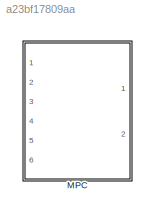
MODEL slx_a23bf17809aa
KIND library
CONFIG AbsTol = auto
CONFIG EnableMultiTasking = off
CONFIG FixedStep = auto
CONFIG MaxStep = auto
CONFIG MinStep = auto
CONFIG RelTol = 1e-3
CONFIG SampleTimeConstraint = Unconstrained
CONFIG Solver = VariableStepAuto
CONFIG SolverName = VariableStepAuto
CONFIG StartTime = 0.0
CONFIG StopTime = 10.0
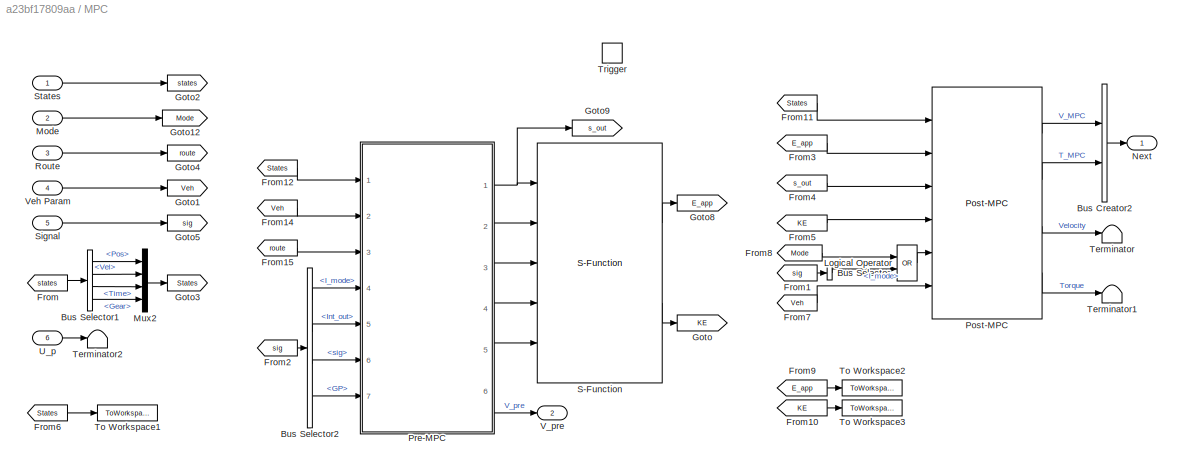
BLOCK [SubSystem] MPC
  Ports = [6, 2, 0, 1]
  RequestExecContextInheritance = off
  TreatAsAtomicUnit = on
BLOCK [BusCreator] MPC/Bus Creator2
  DisplayOption = bar
  InheritFromInputs = on
  Inputs = 2
  Ports = [2, 1]
BLOCK [BusSelector] MPC/Bus Selector
  OutputAsBus = off
  OutputSignals = Signal.I_mode
  Ports = [1, 1]
BLOCK [BusSelector] MPC/Bus Selector1
  OutputAsBus = off
  OutputSignals = Pos,Vel,Time,Gear
  Ports = [1, 4]
BLOCK [BusSelector] MPC/Bus Selector2
  OutputAsBus = off
  OutputSignals = Signal.I_mode,Signal.Int_out,Signal.sig,GP
  Ports = [1, 4]
BLOCK [From] MPC/From
  GotoTag = states
BLOCK [From] MPC/From1
  GotoTag = sig
BLOCK [From] MPC/From10
  GotoTag = KE
BLOCK [From] MPC/From11
  GotoTag = States
BLOCK [From] MPC/From12
  GotoTag = States
BLOCK [From] MPC/From14
  GotoTag = Veh
BLOCK [From] MPC/From15
  GotoTag = route
BLOCK [From] MPC/From2
  GotoTag = sig
BLOCK [From] MPC/From3
  GotoTag = E_app
BLOCK [From] MPC/From4
  GotoTag = s_out
BLOCK [From] MPC/From5
  GotoTag = KE
BLOCK [From] MPC/From6
  GotoTag = States
BLOCK [From] MPC/From7
  GotoTag = Veh
BLOCK [From] MPC/From8
  GotoTag = Mode
BLOCK [From] MPC/From9
  GotoTag = E_app
BLOCK [Goto] MPC/Goto
  GotoTag = KE
BLOCK [Goto] MPC/Goto1
  GotoTag = Veh
BLOCK [Goto] MPC/Goto12
  GotoTag = Mode
BLOCK [Goto] MPC/Goto2
  GotoTag = states
BLOCK [Goto] MPC/Goto3
  GotoTag = States
BLOCK [Goto] MPC/Goto4
  GotoTag = route
BLOCK [Goto] MPC/Goto5
  GotoTag = sig
BLOCK [Goto] MPC/Goto8
  GotoTag = E_app
BLOCK [Goto] MPC/Goto9
  GotoTag = s_out
BLOCK [Logic] MPC/Logical Operator
  AllPortsSameDT = off
  Operator = OR
  OutDataTypeStr = boolean
  Ports = [2, 1]
BLOCK [Inport] MPC/Mode
  IconDisplay = Port number
  Port = 2
BLOCK [Mux] MPC/Mux2
  DisplayOption = bar
  Ports = [4, 1]
BLOCK [Outport] MPC/Next
  IconDisplay = Port number
BLOCK [Reference] MPC/Post-MPC  REF=Post_MPC_UL/Post-MPC
  Ports = [6, 4]
  SourceBlock = Post_MPC_UL/Post-MPC
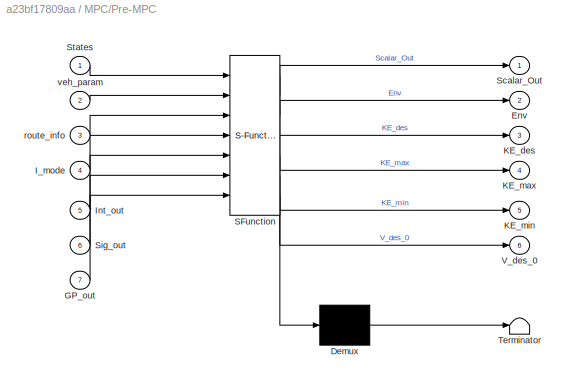
BLOCK [SubSystem] MPC/Pre-MPC
  ErrorFcn = Stateflow.Translate.translate
  PermitHierarchicalResolution = ExplicitOnly
  Ports = [7, 6]
  RequestExecContextInheritance = off
  SFBlockType = MATLAB Function
  TreatAsAtomicUnit = on
BLOCK [Demux] MPC/Pre-MPC/ Demux 
  Outputs = 1
  Ports = [1, 1]
BLOCK [S-Function] MPC/Pre-MPC/ SFunction 
  EnableBusSupport = on
  FunctionName = sf_sfun
  PortCounts = [7 7]
  Ports = [7, 7]
  SFcnIsStateOwnerBlock = off
  SFunctionDeploymentMode = off
  Tag = Stateflow S-Function MPC_51_v1_GP_CL 2
BLOCK [Terminator] MPC/Pre-MPC/ Terminator 
BLOCK [Outport] MPC/Pre-MPC/Env
  IconDisplay = Port number
  Port = 2
BLOCK [Inport] MPC/Pre-MPC/GP_out
  IconDisplay = Port number
  Port = 7
BLOCK [Inport] MPC/Pre-MPC/I_mode
  IconDisplay = Port number
  Port = 4
BLOCK [Inport] MPC/Pre-MPC/Int_out
  IconDisplay = Port number
  Port = 5
BLOCK [Outport] MPC/Pre-MPC/KE_des
  IconDisplay = Port number
  Port = 3
BLOCK [Outport] MPC/Pre-MPC/KE_max
  IconDisplay = Port number
  Port = 4
BLOCK [Outport] MPC/Pre-MPC/KE_min
  IconDisplay = Port number
  Port = 5
BLOCK [Outport] MPC/Pre-MPC/Scalar_Out
  IconDisplay = Port number
BLOCK [Inport] MPC/Pre-MPC/Sig_out
  IconDisplay = Port number
  Port = 6
BLOCK [Inport] MPC/Pre-MPC/States
  IconDisplay = Port number
BLOCK [Outport] MPC/Pre-MPC/V_des_0
  IconDisplay = Port number
  Port = 6
BLOCK [Inport] MPC/Pre-MPC/route_info
  IconDisplay = Port number
  Port = 3
BLOCK [Inport] MPC/Pre-MPC/veh_param
  IconDisplay = Port number
  Port = 2
BLOCK [Inport] MPC/Route
  IconDisplay = Port number
  Port = 3
BLOCK [Reference] MPC/S-Function  REF=solver_51_v1_UL/S-Function
  Ports = [5, 2]
  SourceBlock = solver_51_v1_UL/S-Function
BLOCK [Inport] MPC/Signal
  IconDisplay = Port number
  Port = 5
BLOCK [Inport] MPC/States
  IconDisplay = Port number
BLOCK [Terminator] MPC/Terminator
BLOCK [Terminator] MPC/Terminator1
BLOCK [Terminator] MPC/Terminator2
BLOCK [ToWorkspace] MPC/To Workspace1
  FixptAsFi = on
  MaxDataPoints = inf
  Ports = [1]
  SampleTime = -1
  Save2DSignal = 3-D array (concatenate along third dimension)
  VariableName = States
BLOCK [ToWorkspace] MPC/To Workspace2
  FixptAsFi = on
  MaxDataPoints = inf
  Ports = [1]
  SampleTime = -1
  Save2DSignal = 3-D array (concatenate along third dimension)
  VariableName = E_app
BLOCK [ToWorkspace] MPC/To Workspace3
  FixptAsFi = on
  MaxDataPoints = inf
  Ports = [1]
  SampleTime = -1
  Save2DSignal = 3-D array (concatenate along third dimension)
  VariableName = KE
BLOCK [TriggerPort] MPC/Trigger
  Ports = []
  StatesWhenEnabling = held
  TriggerType = falling
  VariantControl = Variant
BLOCK [Inport] MPC/U_p
  IconDisplay = Port number
  Port = 6
BLOCK [Outport] MPC/V_pre
  IconDisplay = Port number
  Port = 2
BLOCK [Inport] MPC/Veh Param
  IconDisplay = Port number
  Port = 4
LINE MPC/Bus Creator2:1 -> MPC/Next:1
LINE MPC/Bus Selector1:1 -> MPC/Mux2:1
LINE MPC/Bus Selector1:2 -> MPC/Mux2:2
LINE MPC/Bus Selector1:3 -> MPC/Mux2:3
LINE MPC/Bus Selector1:4 -> MPC/Mux2:4
LINE MPC/Bus Selector2:1 -> MPC/Pre-MPC:4
LINE MPC/Bus Selector2:2 -> MPC/Pre-MPC:5
LINE MPC/Bus Selector2:3 -> MPC/Pre-MPC:6
LINE MPC/Bus Selector2:4 -> MPC/Pre-MPC:7
LINE MPC/Bus Selector:1 -> MPC/Logical Operator:2
LINE MPC/From10:1 -> MPC/To Workspace3:1
LINE MPC/From11:1 -> MPC/Post-MPC:1
LINE MPC/From12:1 -> MPC/Pre-MPC:1
LINE MPC/From14:1 -> MPC/Pre-MPC:2
LINE MPC/From15:1 -> MPC/Pre-MPC:3
LINE MPC/From1:1 -> MPC/Bus Selector:1
LINE MPC/From2:1 -> MPC/Bus Selector2:1
LINE MPC/From3:1 -> MPC/Post-MPC:2
LINE MPC/From4:1 -> MPC/Post-MPC:3
LINE MPC/From5:1 -> MPC/Post-MPC:4
LINE MPC/From6:1 -> MPC/To Workspace1:1
LINE MPC/From7:1 -> MPC/Post-MPC:6
LINE MPC/From8:1 -> MPC/Logical Operator:1
LINE MPC/From9:1 -> MPC/To Workspace2:1
LINE MPC/From:1 -> MPC/Bus Selector1:1
LINE MPC/Logical Operator:1 -> MPC/Post-MPC:5
LINE MPC/Mode:1 -> MPC/Goto12:1
LINE MPC/Mux2:1 -> MPC/Goto3:1
LINE MPC/Post-MPC:1 -> MPC/Bus Creator2:1
LINE MPC/Post-MPC:2 -> MPC/Bus Creator2:2
LINE MPC/Post-MPC:3 -> MPC/Terminator:1
LINE MPC/Post-MPC:4 -> MPC/Terminator1:1
NET MPC/Pre-MPC:1 -> MPC/Goto9:1, MPC/S-Function:1
LINE MPC/Pre-MPC:2 -> MPC/S-Function:2
LINE MPC/Pre-MPC:3 -> MPC/S-Function:3
LINE MPC/Pre-MPC:4 -> MPC/S-Function:4
LINE MPC/Pre-MPC:5 -> MPC/S-Function:5
LINE MPC/Pre-MPC:6 -> MPC/V_pre:1
LINE MPC/Route:1 -> MPC/Goto4:1
LINE MPC/S-Function:1 -> MPC/Goto8:1
LINE MPC/S-Function:2 -> MPC/Goto:1
LINE MPC/Signal:1 -> MPC/Goto5:1
LINE MPC/States:1 -> MPC/Goto2:1
LINE MPC/U_p:1 -> MPC/Terminator2:1
LINE MPC/Veh Param:1 -> MPC/Goto1:1
note: NET lines group one-source signal fan-out (src -> all destinations, sorted); 1:1 wires keep LINE
CHART MPC/Pre-MPC states=1 transitions=1
  STATE_LABEL 'eML_blk_kernel()'
  STATE_LABEL 'SCRIPT:\nfunction [Scalar_Out,Env,KE_des,KE_max,KE_min,V_des_0] = ...\n    fcn(States,veh_param,route_info,I_mode,Int_out,Sig_out,GP_out)\n\nt_0 = States(3);                                        %   s - Sim time\nif t_0 == 0\n    t_0 = .01;\nend\nx_0 = States(1);                                        %   m - Current position\nv_0 = States(2);                                        %   m/s - Current velo...<+3608ch>'
